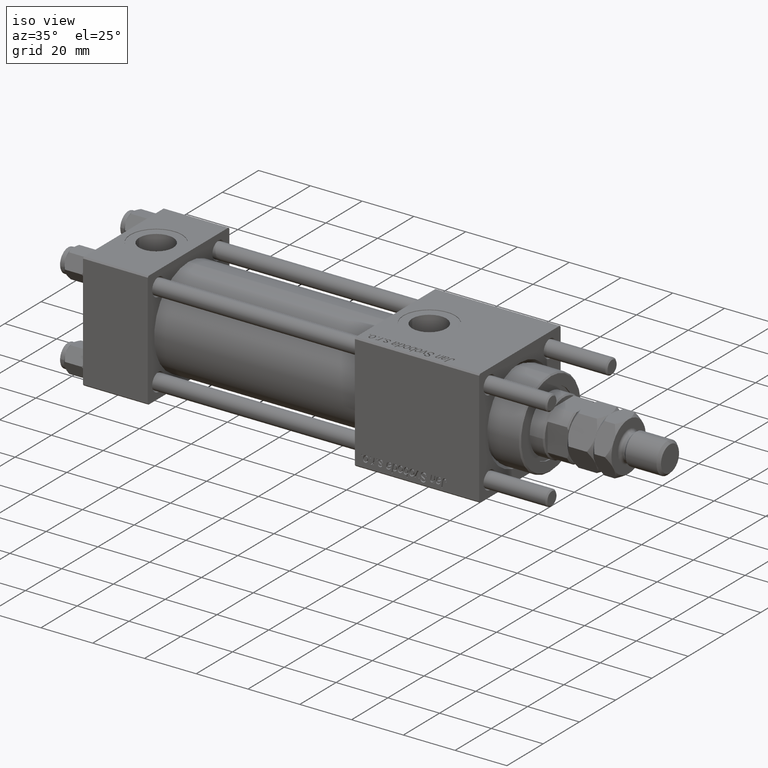
[diagram: clean part render]
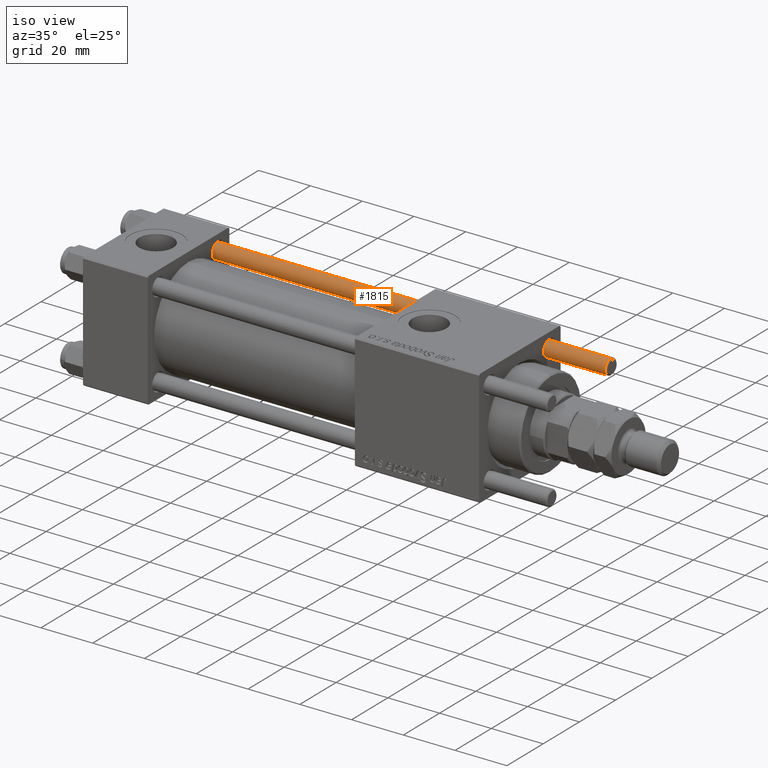
[diagram: same view with one face highlighted and labeled with its STEP entity id]
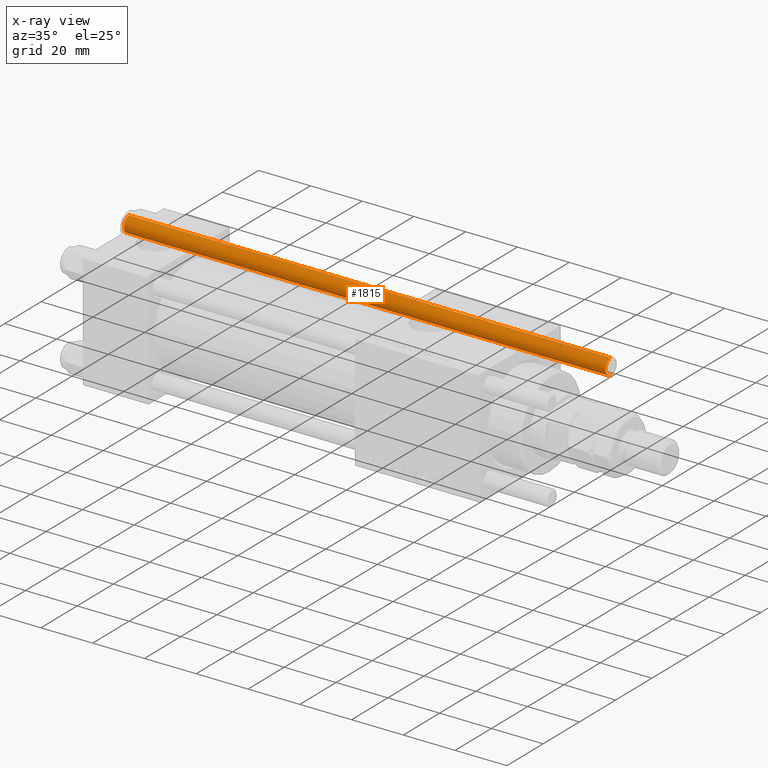
[diagram: x-ray of the same camera — body ghosted, the highlighted face saturated]
A machine part, iso view. The second image highlights one B-rep face of the part: STEP entity #1815.
The next image is the same camera in x-ray: the body ghosted, the highlighted face saturated — about 0% of this face is hidden behind the body in this view.
In plain terms, the highlighted cylindrical surface (edge-blend (fillet) strip) has radius 3 mm, axis along (1, -0, -0).
Its self-contained STEP definition (entity closure, byte-faithful):
#767 = CARTESIAN_POINT ( 'NONE',  ( 0.000000000000000000, 0.000000000000000000, 186.5000000000000568 ) ) ;
#820 = VERTEX_POINT ( 'NONE', #40511 ) ;
#1815 = ADVANCED_FACE ( 'NONE', ( #26632 ), #3412, .T. ) ;
#2127 = DIRECTION ( 'NONE',  ( 1.000000000000000000, 0.000000000000000000, 0.000000000000000000 ) ) ;
#2681 = AXIS2_PLACEMENT_3D ( 'NONE', #767, #47530, #15137 ) ;
#3412 = CYLINDRICAL_SURFACE ( 'NONE', #37008, 3.000000000000000444 ) ;
#3953 = ORIENTED_EDGE ( 'NONE', *, *, #50004, .T. ) ;
#5425 = VECTOR ( 'NONE', #46167, 1000.000000000000000 ) ;
#9494 = CIRCLE ( 'NONE', #2681, 3.000000000000000444 ) ;
#9937 = CARTESIAN_POINT ( 'NONE',  ( 3.000000000000000444, 3.673940397442060361E-16, 0.5000000000000281997 ) ) ;
#10996 = DIRECTION ( 'NONE',  ( -0.000000000000000000, -0.000000000000000000, -1.000000000000000000 ) ) ;
#11711 = CARTESIAN_POINT ( 'NONE',  ( -3.000000000000000444, 0.000000000000000000, 186.5000000000000568 ) ) ;
#13311 = VERTEX_POINT ( 'NONE', #11711 ) ;
#14077 = CARTESIAN_POINT ( 'NONE',  ( 3.000000000000000444, 3.673940397442060361E-16, 187.0000000000000000 ) ) ;
#15137 = DIRECTION ( 'NONE',  ( 1.000000000000000000, 0.000000000000000000, 0.000000000000000000 ) ) ;
#17473 = DIRECTION ( 'NONE',  ( -1.000000000000000000, 0.000000000000000000, 0.000000000000000000 ) ) ;
#19567 = ORIENTED_EDGE ( 'NONE', *, *, #28514, .F. ) ;
#20299 = CIRCLE ( 'NONE', #38859, 3.000000000000000444 ) ;
#22044 = CARTESIAN_POINT ( 'NONE',  ( 0.000000000000000000, 0.000000000000000000, 187.0000000000000000 ) ) ;
#22341 = DIRECTION ( 'NONE',  ( -0.000000000000000000, -0.000000000000000000, -1.000000000000000000 ) ) ;
#24438 = LINE ( 'NONE', #34510, #48533 ) ;
#26632 = FACE_OUTER_BOUND ( 'NONE', #60101, .T. ) ;
#26986 = CARTESIAN_POINT ( 'NONE',  ( 0.000000000000000000, 0.000000000000000000, 0.5000000000000281997 ) ) ;
#27474 = VERTEX_POINT ( 'NONE', #9937 ) ;
#28235 = CARTESIAN_POINT ( 'NONE',  ( 3.000000000000000444, 3.673940397442060361E-16, 186.5000000000000568 ) ) ;
#28514 = EDGE_CURVE ( 'NONE', #39116, #27474, #46786, .T. ) ;
#34510 = CARTESIAN_POINT ( 'NONE',  ( -3.000000000000000444, 0.000000000000000000, 187.0000000000000000 ) ) ;
#37008 = AXIS2_PLACEMENT_3D ( 'NONE', #22044, #22341, #17473 ) ;
#38859 = AXIS2_PLACEMENT_3D ( 'NONE', #26986, #41068, #2127 ) ;
#39116 = VERTEX_POINT ( 'NONE', #28235 ) ;
#40511 = CARTESIAN_POINT ( 'NONE',  ( -3.000000000000000444, 0.000000000000000000, 0.5000000000000281997 ) ) ;
#41068 = DIRECTION ( 'NONE',  ( -0.000000000000000000, -0.000000000000000000, 1.000000000000000000 ) ) ;
#46167 = DIRECTION ( 'NONE',  ( -0.000000000000000000, -0.000000000000000000, -1.000000000000000000 ) ) ;
#46573 = ORIENTED_EDGE ( 'NONE', *, *, #57591, .T. ) ;
#46786 = LINE ( 'NONE', #14077, #5425 ) ;
#47530 = DIRECTION ( 'NONE',  ( 0.000000000000000000, 0.000000000000000000, -1.000000000000000000 ) ) ;
#48533 = VECTOR ( 'NONE', #10996, 1000.000000000000000 ) ;
#50004 = EDGE_CURVE ( 'NONE', #13311, #820, #24438, .T. ) ;
#50032 = ORIENTED_EDGE ( 'NONE', *, *, #50222, .T. ) ;
#50222 = EDGE_CURVE ( 'NONE', #39116, #13311, #9494, .T. ) ;
#57591 = EDGE_CURVE ( 'NONE', #820, #27474, #20299, .T. ) ;
#60101 = EDGE_LOOP ( 'NONE', ( #19567, #50032, #3953, #46573 ) ) ;